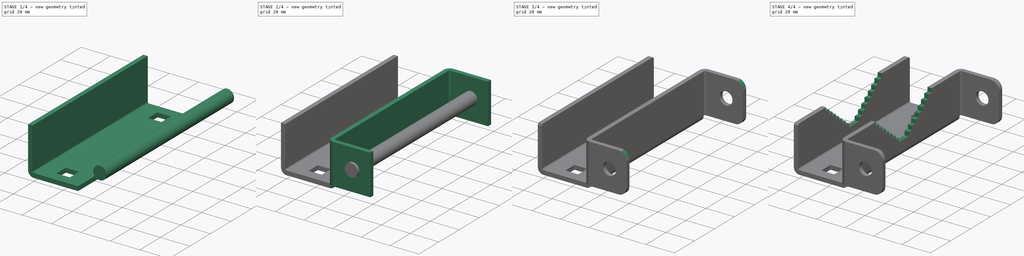
[diagram: build sequence overview — one tinted view per stage of 4, left to right]
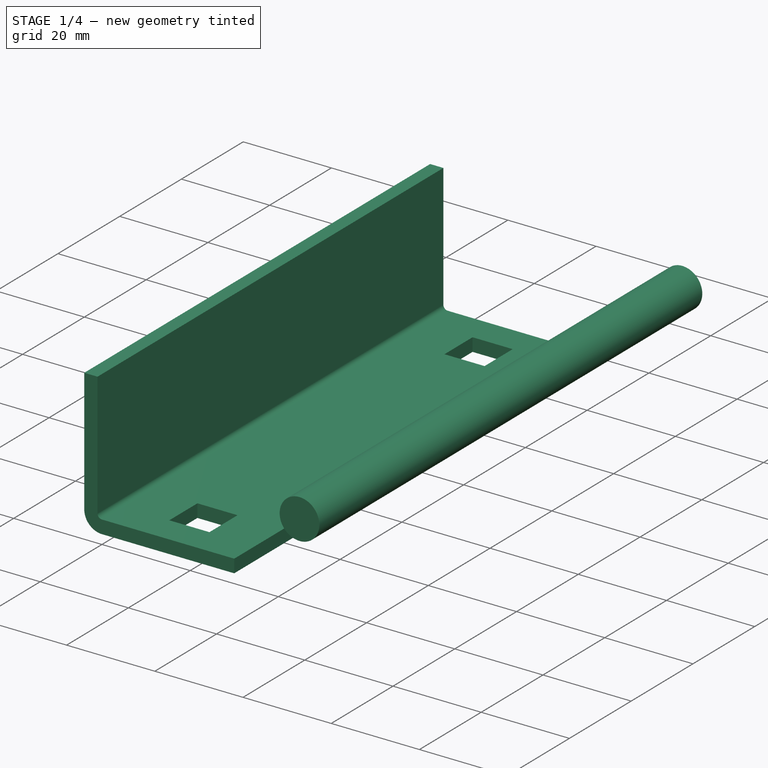
[diagram: stage 1 of 4 — iso view after this stage's code; geometry added in this stage tinted green]
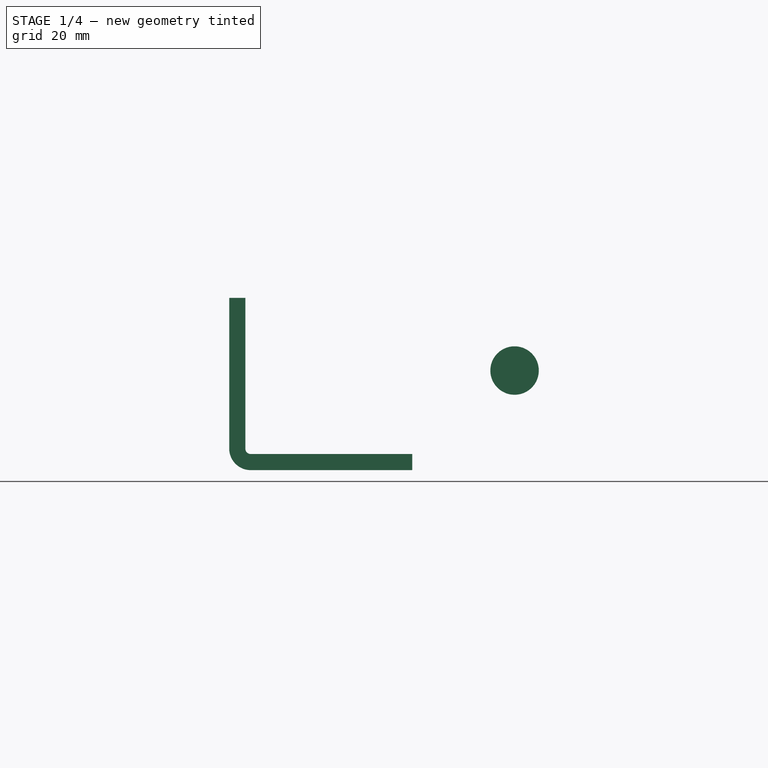
[diagram: stage 1 of 4 — front view after this stage's code; geometry added in this stage tinted green]
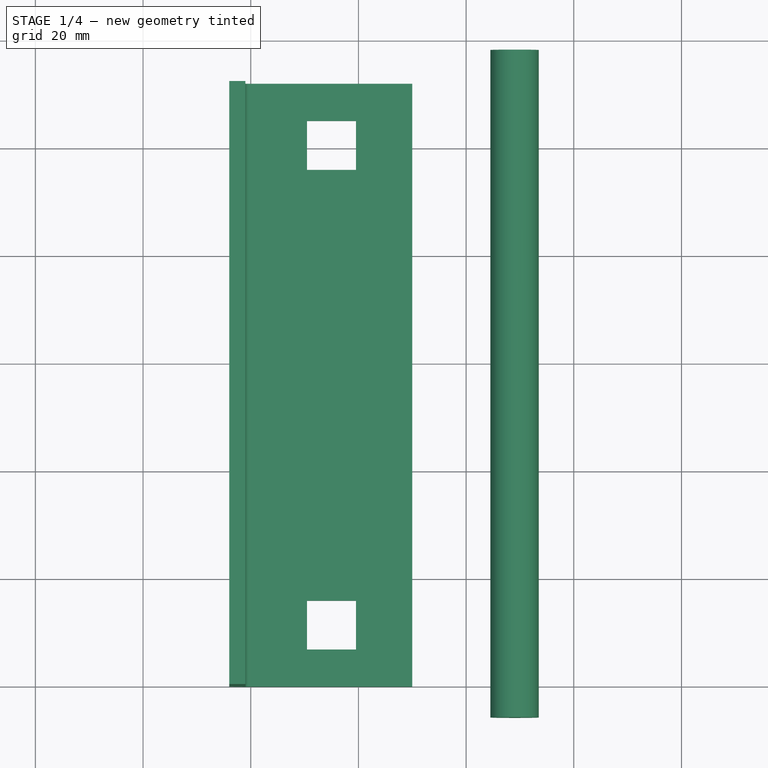
[diagram: stage 1 of 4 — top view after this stage's code; geometry added in this stage tinted green]
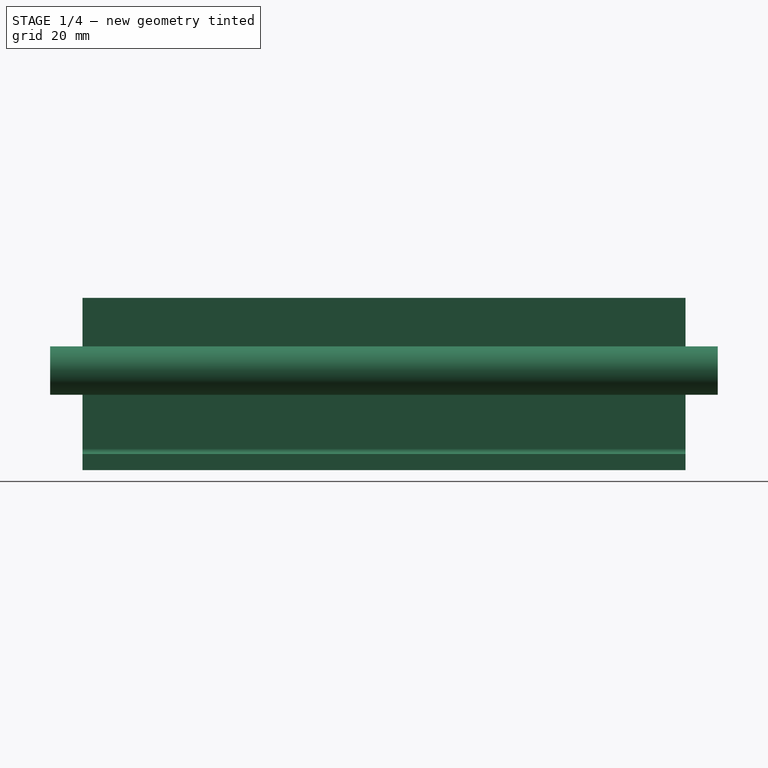
[diagram: stage 1 of 4 — right view after this stage's code; geometry added in this stage tinted green]
FCSTD DOCUMENT  (FreeCAD 2021.1015R24301 +3962 (Git))
Label: bracket_sheetmetal
License: All rights reserved
LicenseURL: http://en.wikipedia.org/wiki/All_rights_reserved
objects: TechDraw::DrawViewDimension×16, Part::FeaturePython×4, Sketcher::SketchObject×3, Part::Cut×2, App::Part×2, Spreadsheet::Sheet×1, Part::Extrusion×1, Part::Cylinder×1, Part::Fillet×1, Part::SubShapeBinder×1, PartDesign::Pad×1, PartDesign::Boolean×1, PartDesign::SubShapeBinder×1, PartDesign::Body×1, Part::Feature×1, TechDraw::DrawSVGTemplate×1, TechDraw::DrawProjGroupItem×1, TechDraw::DrawProjGroup×1, TechDraw::DrawPage×1
note: 21 computed .brp shape members not serialized (recipe doc carries the construction recipe); baked Part::Feature solids carry a one-line shape summary decoded from their .brp

FEATURE [Spreadsheet::Sheet] Spreadsheet  label="vars"
  PythonMode = false
  cells = A1='width; B1(width)=112; A2='height; B2(height)=31; A3='thickness; B3(thickness)=3; A4='bottom_len; B4(bottom_len)=30; A5='tab_len; B5(tab_len)=26; A6='sq_hole_spacing; B6(sq_spacing)=80; A7='sq_width; B7(sq_width)=9.1; A8='tab_hole_radius; B8(tab_hole_radius)=4.5
FEATURE [Sketcher::SketchObject] Sketch
  FullyConstrained = true
  expr: Constraints[10] = <<vars>>.bottom_len
  expr: Constraints[36] = Spreadsheet.sq_spacing
  expr: Constraints[42] = <<vars>>.sq_width
  expr: Constraints[9] = <<vars>>.width
  sketch-geometry (20):
    g0: LineSegment StartX=0 StartY=0 StartZ=0 EndX=30 EndY=0 EndZ=0
    g1: LineSegment StartX=30 StartY=0 StartZ=0 EndX=30 EndY=112 EndZ=0
    g2: LineSegment StartX=30 StartY=112 StartZ=0 EndX=0 EndY=112 EndZ=0
    g3: LineSegment StartX=0 StartY=112 StartZ=0 EndX=0 EndY=0 EndZ=0
    g4: LineSegment StartX=10.45 StartY=16 StartZ=0 EndX=19.55 EndY=16 EndZ=0
    g5: LineSegment StartX=19.55 StartY=16 StartZ=0 EndX=19.55 EndY=6.9 EndZ=0
    g6: LineSegment StartX=19.55 StartY=6.9 StartZ=0 EndX=10.45 EndY=6.9 EndZ=0
    g7: LineSegment StartX=10.45 StartY=6.9 StartZ=0 EndX=10.45 EndY=16 EndZ=0
    g8: LineSegment StartX=10.45 StartY=105.1 StartZ=0 EndX=19.55 EndY=105.1 EndZ=0
    g9: LineSegment StartX=19.55 StartY=105.1 StartZ=0 EndX=19.55 EndY=96 EndZ=0
    g10: LineSegment StartX=19.55 StartY=96 StartZ=0 EndX=10.45 EndY=96 EndZ=0
    g11: LineSegment StartX=10.45 StartY=96 StartZ=0 EndX=10.45 EndY=105.1 EndZ=0
    g12: GeomPoint [constr] X=15 Y=100.55 Z=0
    g13: GeomPoint [constr] X=15 Y=11.45 Z=0
    g14: GeomPoint [constr] X=15 Y=56 Z=0
    g15: LineSegment [constr] StartX=15 StartY=96 StartZ=0 EndX=15 EndY=16 EndZ=0
    g16: GeomPoint [constr] X=15 Y=56 Z=0
    g17: GeomPoint [constr] X=15 Y=16 Z=0
    g18: GeomPoint [constr] X=15 Y=56 Z=0
    g19: GeomPoint [constr] X=15 Y=96 Z=0
  constraints (43):
    c: Coincident(g0,g1)
    c: Coincident(g1,g2)
    c: Coincident(g2,g3)
    c: Coincident(g3,g0)
    c: Horizontal(g0)
    c: Horizontal(g2)
    c: Vertical(g1)
    c: Vertical(g3)
    c: Coincident(g0,g-1)
    c: DistanceY(g1,g1) = 112
    c: DistanceX(g0,g0) = 30
    c: Coincident(g4,g5)
    c: Coincident(g5,g6)
    c: Coincident(g6,g7)
    c: Coincident(g7,g4)
    c: Horizontal(g4)
    c: Horizontal(g6)
    c: Vertical(g5)
    c: Vertical(g7)
    c: Coincident(g8,g9)
    c: Coincident(g9,g10)
    c: Coincident(g10,g11)
    c: Coincident(g11,g8)
    c: Horizontal(g8)
    c: Horizontal(g10)
    c: Vertical(g9)
    c: Vertical(g11)
    c: Equal(g10,g11)
    c: Equal(g6,g7)
    c: Equal(g7,g11)
    c: Symmetric(g4,g5,g13)
    c: Symmetric(g9,g8,g12)
    c: Symmetric(g2,g0,g14)
    c: Vertical(g15)
    c: Symmetric(g15,g15,g16)
    c: Coincident(g16,g14)
    c: DistanceY(g15,g15) = 80
    c: Symmetric(g4,g4,g17)
    c: Symmetric(g15,g15,g18)
    c: Coincident(g17,g15)
    c: Symmetric(g9,g10,g19)
    c: Coincident(g15,g19)
    c: DistanceY(g7,g7) = 9.1
FEATURE [Part::Extrusion] Extrude
  Base = -> Sketch
  Dir = (0,0,1)
  DirMode = 2
  FaceMakerClass = Part::FaceMakerBullseye
  InnerTaperAngle = 0
  InnerTaperAngleRev = 0
  LengthFwd = 3
  LengthRev = 0
  Linearize = true
  Solid = true
  Symmetric = false
  expr: LengthFwd = <<vars>>.thickness
FEATURE [Part::FeaturePython] Bend  # WARN: FeaturePython — macro-defined, semantics opaque (R4)
  AutoMiter = true
  BendType = 0
  LengthList = [28]
  ReliefFactor = 0.7
  UseReliefFactor = false
  angle = 90
  baseObject = -> Extrude [Face4]
  bendAList = [90]
  extend1 = 0
  extend2 = 0
  gap1 = 0
  gap2 = 0
  invert = false
  kfactor = 0.5
  length = 28
  maxExtendDist = 5
  minGap = 0.1
  minReliefGap = 1
  miterangle1 = 0
  miterangle2 = 0
  offset = 0
  radius = 1
  reliefType = 0
  reliefd = 1
  reliefw = 0.8
  sketchflip = false
  sketchinvert = false
  unfold = false
  expr: length = <<vars>>.height - <<vars>>.thickness
FEATURE [Part::Cylinder] Cylinder
  Angle = 360
  AttacherType = Attacher::AttachEngine3D
  Height = 124
  Placement = pos=(49,-6,18.5) rot=(1,0,0;4.71239rad)
  Radius = 4.5
  expr: Placement.Base.x = <<vars>>.bottom_len + 2 * <<vars>>.thickness + <<vars>>.tab_len / 2
  expr: Placement.Base.y = -<<vars>>.thickness * 2
  expr: Placement.Base.z = <<vars>>.height / 2 + <<vars>>.thickness
  expr: Height = <<vars>>.width + <<vars>>.thickness * 4
  expr: Radius = <<vars>>.tab_hole_radius
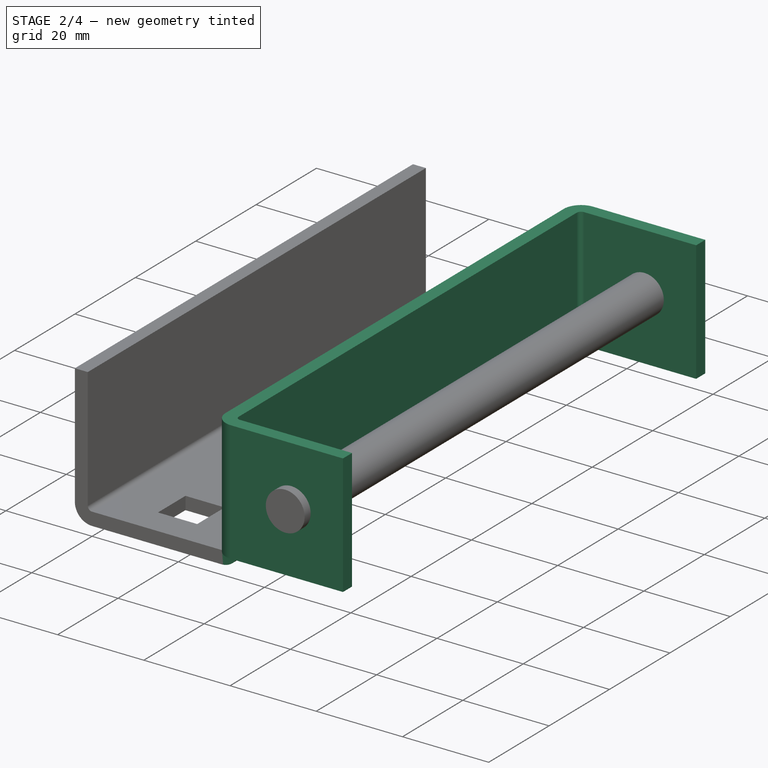
[diagram: stage 2 of 4 — iso view after this stage's code; geometry added in this stage tinted green]
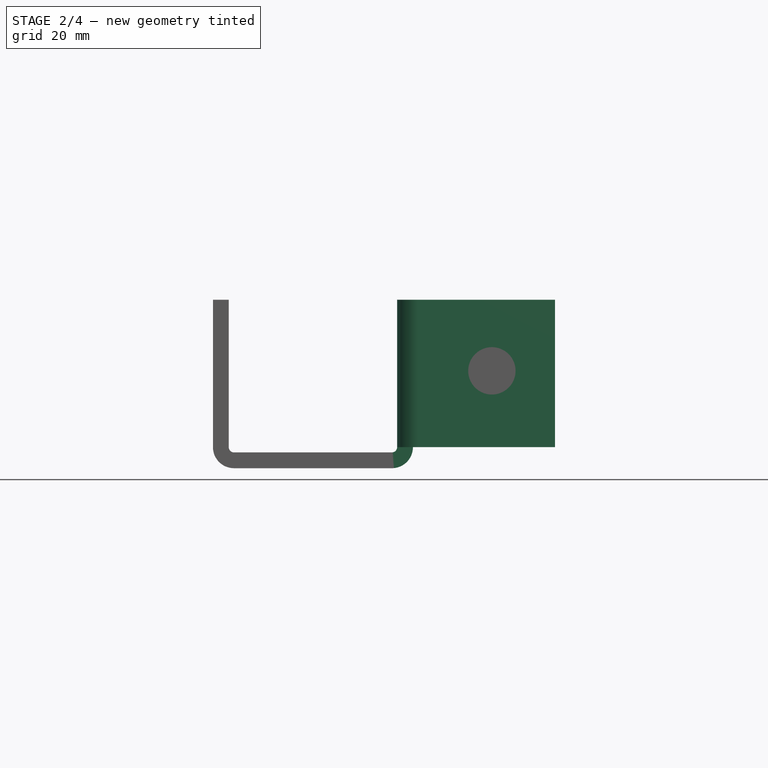
[diagram: stage 2 of 4 — front view after this stage's code; geometry added in this stage tinted green]
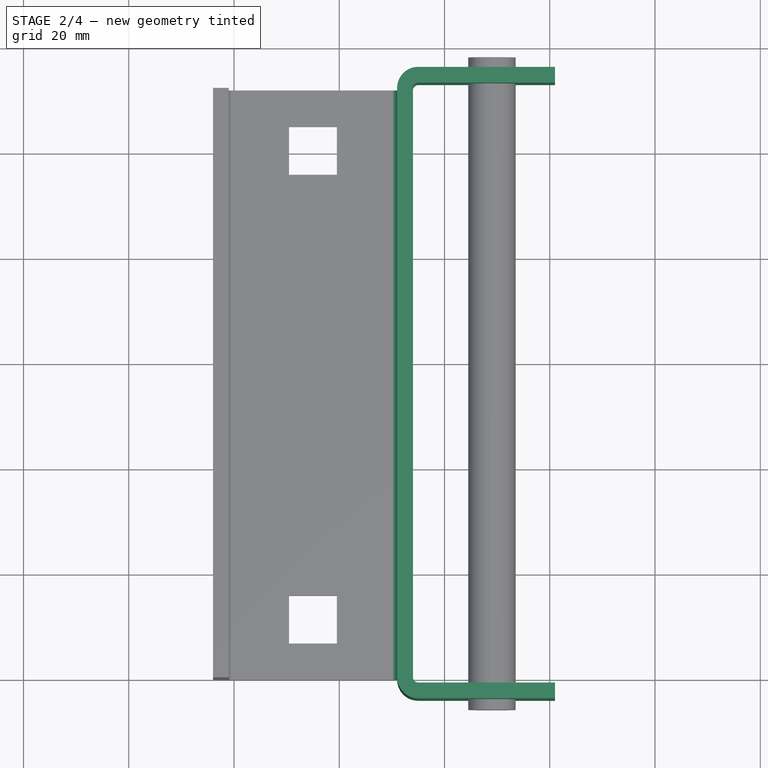
[diagram: stage 2 of 4 — top view after this stage's code; geometry added in this stage tinted green]
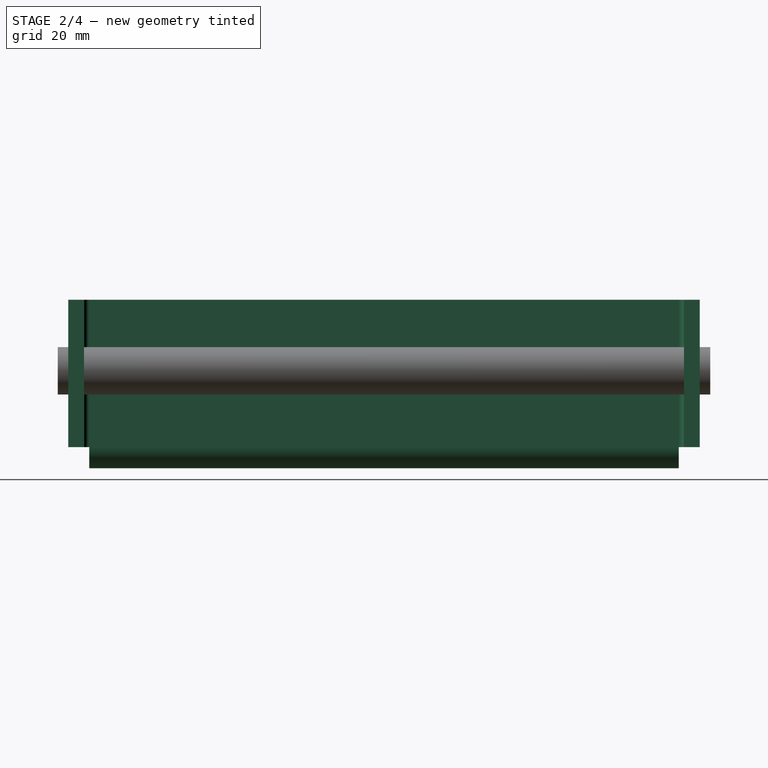
[diagram: stage 2 of 4 — right view after this stage's code; geometry added in this stage tinted green]
FEATURE [Part::FeaturePython] Bend001  # WARN: FeaturePython — macro-defined, semantics opaque (R4)
  AutoMiter = true
  BendType = 0
  LengthList = [28]
  ReliefFactor = 0.7
  UseReliefFactor = false
  angle = 90
  baseObject = -> Bend [Face3]
  bendAList = [90]
  extend1 = 0
  extend2 = 0
  gap1 = 0
  gap2 = 0
  invert = false
  kfactor = 0.5
  length = 28
  maxExtendDist = 5
  minGap = 0.1
  minReliefGap = 1
  miterangle1 = 0
  miterangle2 = 0
  offset = 0
  radius = 1
  reliefType = 0
  reliefd = 1
  reliefw = 0.8
  sketchflip = false
  sketchinvert = false
  unfold = false
  expr: length = <<vars>>.height - <<vars>>.thickness
FEATURE [Part::FeaturePython] Bend002  # WARN: FeaturePython — macro-defined, semantics opaque (R4)
  AutoMiter = true
  BendType = 0
  LengthList = [26]
  ReliefFactor = 0.7
  UseReliefFactor = false
  angle = 90
  baseObject = -> Bend001 [Face11]
  bendAList = [90]
  extend1 = 0
  extend2 = 0
  gap1 = 0
  gap2 = 0
  invert = true
  kfactor = 0.5
  length = 26
  maxExtendDist = 5
  minGap = 0.1
  minReliefGap = 1
  miterangle1 = 0
  miterangle2 = 0
  offset = 0
  radius = 1
  reliefType = 0
  reliefd = 1
  reliefw = 0.8
  sketchflip = false
  sketchinvert = false
  unfold = false
  expr: length = <<vars>>.tab_len
FEATURE [Part::FeaturePython] Bend003  # WARN: FeaturePython — macro-defined, semantics opaque (R4)
  AutoMiter = false
  BendType = 0
  LengthList = [26]
  ReliefFactor = 0.7
  UseReliefFactor = false
  angle = 90
  baseObject = -> Bend002 [Face32]
  bendAList = [90]
  extend1 = 0
  extend2 = 0
  gap1 = 0
  gap2 = 0
  invert = true
  kfactor = 0.5
  length = 26
  maxExtendDist = 5
  minGap = 0.1
  minReliefGap = 1
  miterangle1 = 0
  miterangle2 = 0
  offset = 0
  radius = 1
  reliefType = 0
  reliefd = 1
  reliefw = 0.8
  sketchflip = false
  sketchinvert = false
  unfold = false
  expr: length = <<vars>>.tab_len
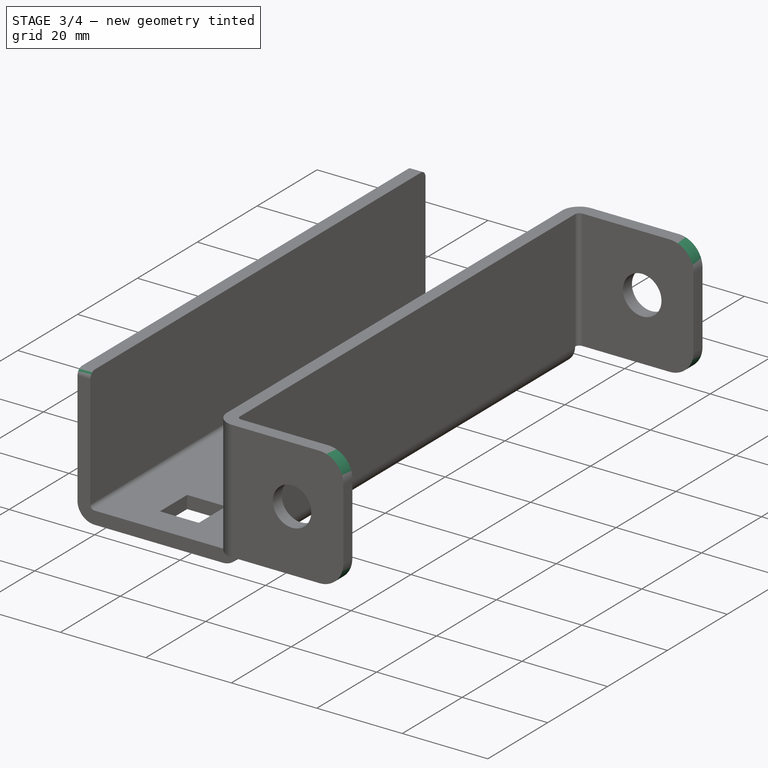
[diagram: stage 3 of 4 — iso view after this stage's code; geometry added in this stage tinted green]
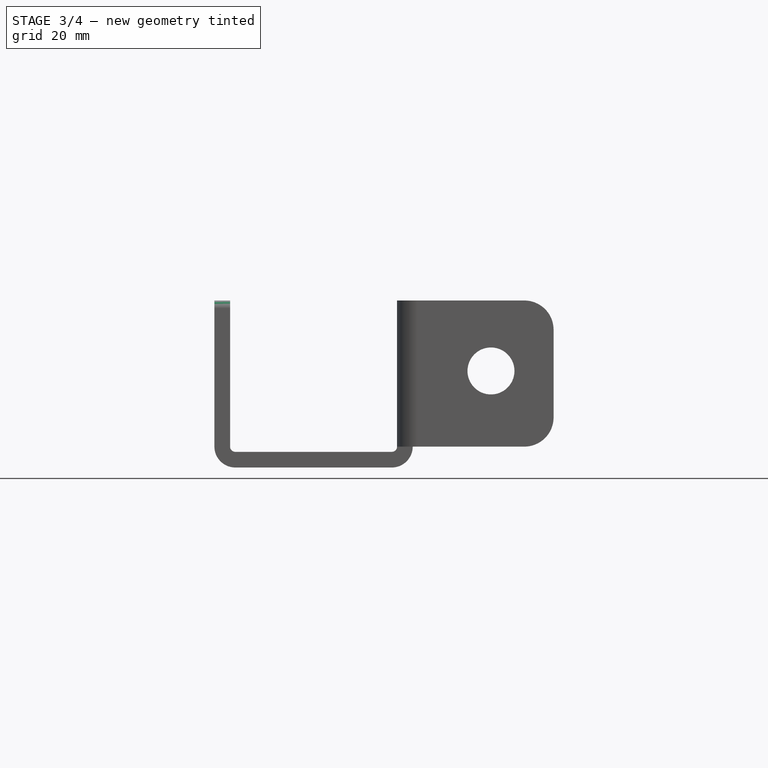
[diagram: stage 3 of 4 — front view after this stage's code; geometry added in this stage tinted green]
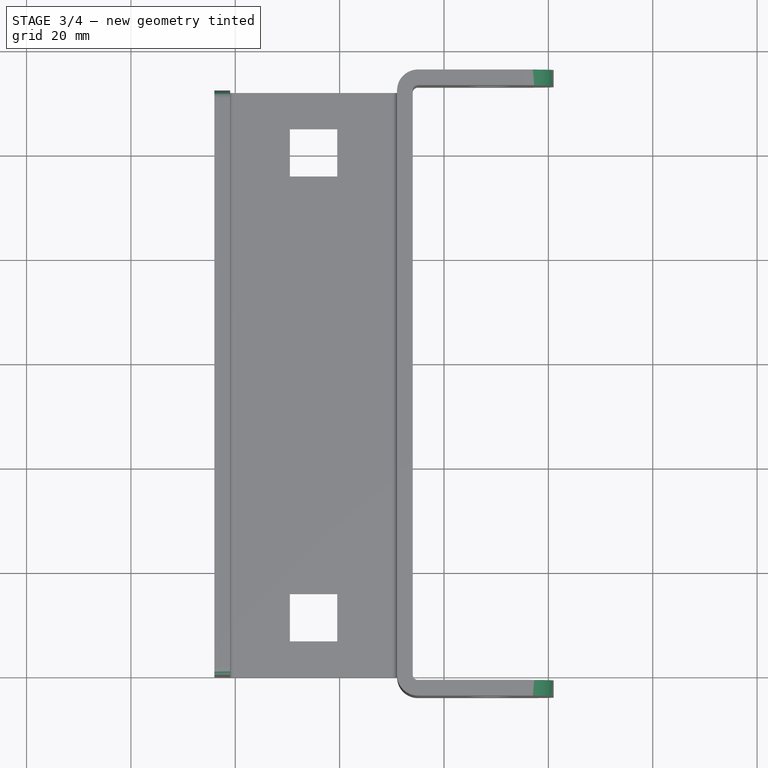
[diagram: stage 3 of 4 — top view after this stage's code; geometry added in this stage tinted green]
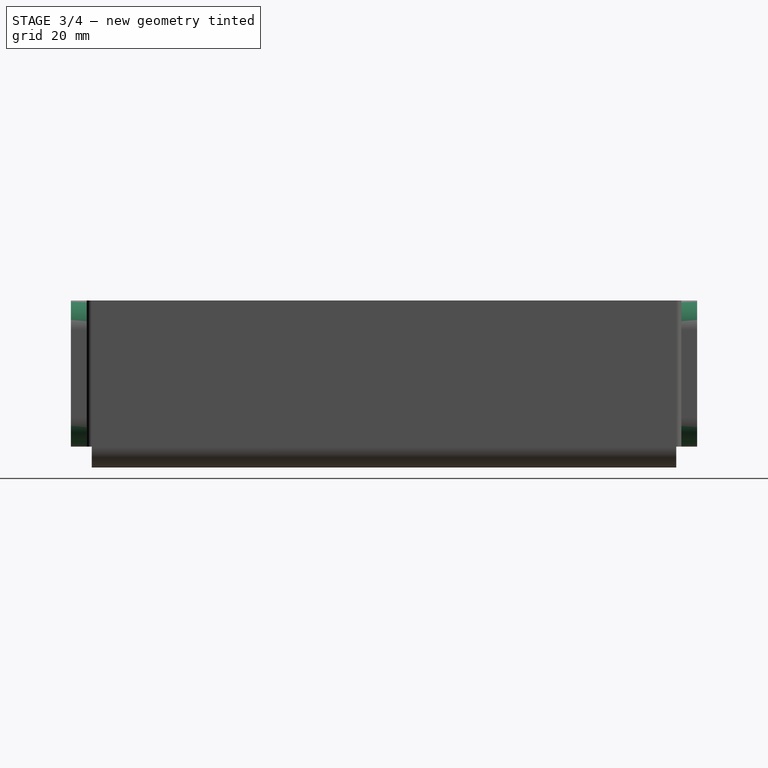
[diagram: stage 3 of 4 — right view after this stage's code; geometry added in this stage tinted green]
FEATURE [Part::Cut] Cut
  Base = -> Bend003
  Tool = -> Cylinder
FEATURE [Part::Fillet] Fillet
  Base = -> Cut
  EdgeLinks = -> Cut [Edge37,Edge62,Edge74,Edge93,Edge94,Edge105]
  Edges = 6 edges: [Edge37 r=1.5,Edge62 r=1.5,Edge74 r=5.6,Edge93 r=5.6,Edge94 r=5.6,Edge105 r=5.6]
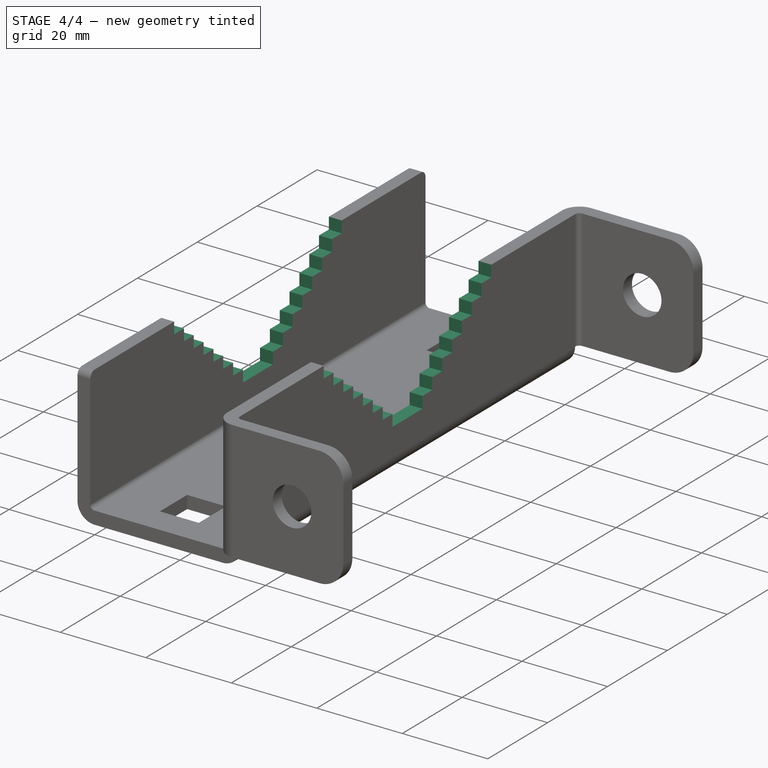
[diagram: stage 4 of 4 — iso view after this stage's code; geometry added in this stage tinted green]
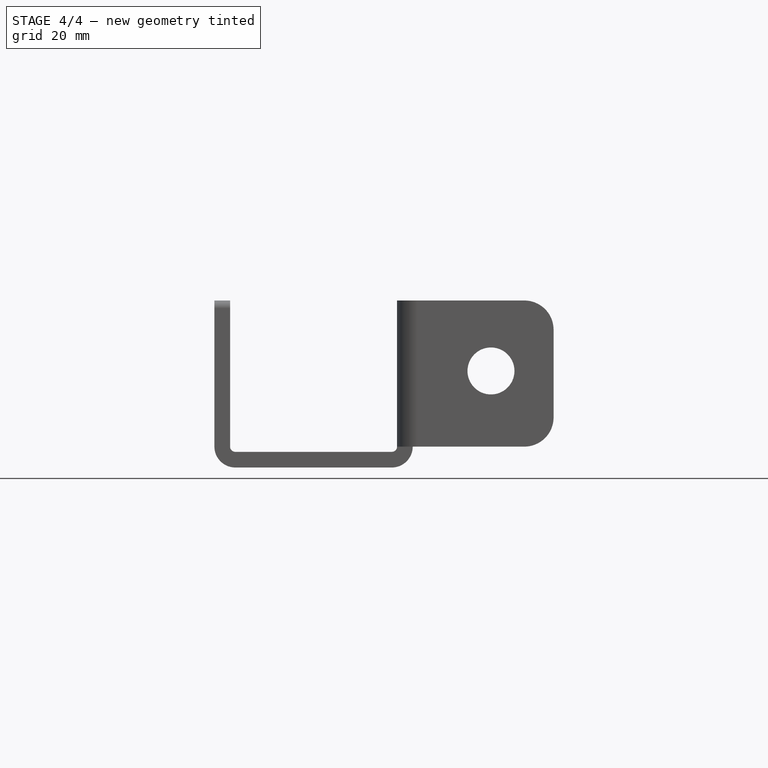
[diagram: stage 4 of 4 — front view after this stage's code; geometry added in this stage tinted green]
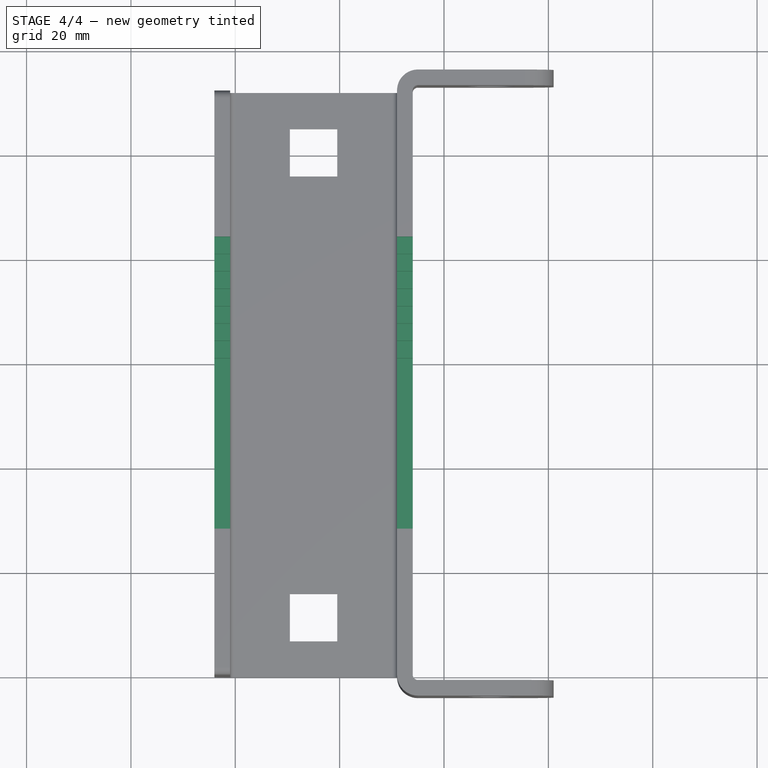
[diagram: stage 4 of 4 — top view after this stage's code; geometry added in this stage tinted green]
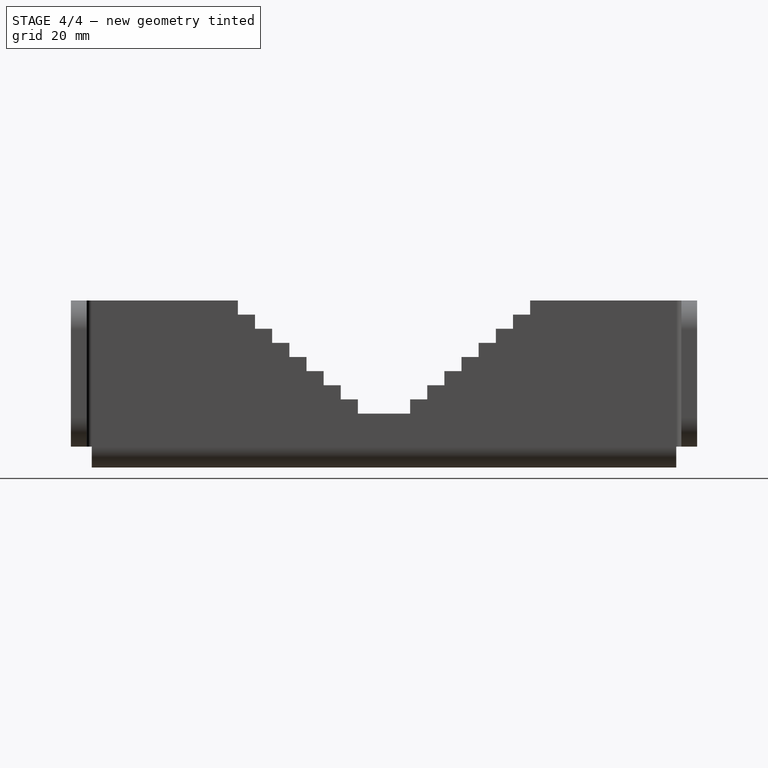
[diagram: stage 4 of 4 — right view after this stage's code; geometry added in this stage tinted green]
FEATURE [App::Part] Part
  ExportMode = 1
  Group = -> [Sketch,Extrude,Bend002,Bend001,Bend,Bend003,Cylinder,Cut,Fillet]
  Origin = -> Origin
  _ExportChildren = -> [Fillet]
  _GroupVersion = 1
FEATURE [Part::SubShapeBinder] Import  label="Import(Fillet)"
  BindCopyOnChange = 0
  BindMode = 0
  ClaimChildren = false
  Context = -> Part001 [Body.Import.]
  FillStyle = 0
  Fuse = false
  MakeFace = false
  PartialLoad = false
  Relative = true
  Support = -> [Part[Fillet.]]
  _Version = 7
FEATURE [Sketcher::SketchObject] Sketch001
  FullyConstrained = true
  MapMode = 5
  Placement = pos=(-4,0,-4e-16) rot=(0.57735,-0.57735,-0.57735;2.0944rad)
  Support = -> [Import]
  expr: Constraints[1] = <<vars>>.width / 2
  expr: Constraints[2] = <<vars>>.height / 3
  expr: Constraints[3] = <<vars>>.width * 3 / 4
  expr: Constraints[4] = <<vars>>.height + 1
  expr: Constraints[5] = <<vars>>.width * 1 / 4
  expr: Constraints[6] = <<vars>>.height + 1
  expr: Constraints[9] = 10
  sketch-geometry (36):
    g0: GeomPoint [constr] X=0 Y=0 Z=0
    g1: GeomPoint [constr] X=-56 Y=10.3333 Z=0
    g2: GeomPoint [constr] X=-84 Y=32 Z=0
    g3: GeomPoint [constr] X=-28 Y=32 Z=0
    g4: LineSegment StartX=-61 StartY=10.3333 StartZ=0 EndX=-51 EndY=10.3333 EndZ=0
    g5: LineSegment StartX=-51 StartY=10.3333 StartZ=0 EndX=-51 EndY=13.0417 EndZ=0
    g6: LineSegment StartX=-51 StartY=13.0417 StartZ=0 EndX=-47.7143 EndY=13.0417 EndZ=0
    g7: LineSegment StartX=-47.7143 StartY=13.0417 StartZ=0 EndX=-47.7143 EndY=15.75 EndZ=0
    g8: LineSegment StartX=-47.7143 StartY=15.75 StartZ=0 EndX=-44.4286 EndY=15.75 EndZ=0
    g9: LineSegment StartX=-44.4286 StartY=15.75 StartZ=0 EndX=-44.4286 EndY=18.4583 EndZ=0
    g10: LineSegment StartX=-44.4286 StartY=18.4583 StartZ=0 EndX=-41.1429 EndY=18.4583 EndZ=0
    g11: LineSegment StartX=-41.1429 StartY=18.4583 StartZ=0 EndX=-41.1429 EndY=21.1667 EndZ=0
    g12: LineSegment StartX=-41.1429 StartY=21.1667 StartZ=0 EndX=-37.8571 EndY=21.1667 EndZ=0
    g13: LineSegment StartX=-37.8571 StartY=21.1667 StartZ=0 EndX=-37.8571 EndY=23.875 EndZ=0
    g14: LineSegment StartX=-37.8571 StartY=23.875 StartZ=0 EndX=-34.5714 EndY=23.875 EndZ=0
    g15: LineSegment StartX=-34.5714 StartY=23.875 StartZ=0 EndX=-34.5714 EndY=26.5833 EndZ=0
    g16: LineSegment StartX=-34.5714 StartY=26.5833 StartZ=0 EndX=-31.2857 EndY=26.5833 EndZ=0
    g17: LineSegment StartX=-31.2857 StartY=26.5833 StartZ=0 EndX=-31.2857 EndY=29.2917 EndZ=0
    g18: LineSegment StartX=-61 StartY=10.3333 StartZ=0 EndX=-61 EndY=13.0417 EndZ=0
    g19: LineSegment StartX=-61 StartY=13.0417 StartZ=0 EndX=-64.2857 EndY=13.0417 EndZ=0
    g20: LineSegment StartX=-64.2857 StartY=13.0417 StartZ=0 EndX=-64.2857 EndY=15.75 EndZ=0
    g21: LineSegment StartX=-64.2857 StartY=15.75 StartZ=0 EndX=-67.5714 EndY=15.75 EndZ=0
    g22: LineSegment StartX=-67.5714 StartY=15.75 StartZ=0 EndX=-67.5714 EndY=18.4583 EndZ=0
    g23: LineSegment StartX=-67.5714 StartY=18.4583 StartZ=0 EndX=-70.8571 EndY=18.4583 EndZ=0
    g24: LineSegment StartX=-70.8571 StartY=18.4583 StartZ=0 EndX=-70.8571 EndY=21.1667 EndZ=0
    g25: LineSegment StartX=-70.8571 StartY=21.1667 StartZ=0 EndX=-74.1429 EndY=21.1667 EndZ=0
    g26: LineSegment StartX=-74.1429 StartY=21.1667 StartZ=0 EndX=-74.1429 EndY=23.875 EndZ=0
    g27: LineSegment StartX=-74.1429 StartY=23.875 StartZ=0 EndX=-77.4286 EndY=23.875 EndZ=0
    g28: LineSegment StartX=-77.4286 StartY=23.875 StartZ=0 EndX=-77.4286 EndY=26.5833 EndZ=0
    g29: LineSegment StartX=-77.4286 StartY=26.5833 StartZ=0 EndX=-80.7143 EndY=26.5833 EndZ=0
    g30: LineSegment StartX=-80.7143 StartY=26.5833 StartZ=0 EndX=-80.7143 EndY=29.2917 EndZ=0
    g31: LineSegment StartX=-84 StartY=32 StartZ=0 EndX=-84 EndY=29.2917 EndZ=0
    g32: LineSegment StartX=-84 StartY=29.2917 StartZ=0 EndX=-80.7143 EndY=29.2917 EndZ=0
    g33: LineSegment StartX=-31.2857 StartY=29.2917 StartZ=0 EndX=-28 EndY=29.2917 EndZ=0
    g34: LineSegment StartX=-28 StartY=29.2917 StartZ=0 EndX=-28 EndY=32 EndZ=0
    g35: LineSegment StartX=-84 StartY=32 StartZ=0 EndX=-28 EndY=32 EndZ=0
  constraints (100):
    c: Coincident(g0,g-1)
    c: DistanceX(g1,g0) = 56
    c: DistanceY(g0,g1) = 10.3333
    c: DistanceX(g2,g0) = 84
    c: DistanceY(g0,g2) = 32
    c: DistanceX(g3,g0) = 28
    c: DistanceY(g0,g3) = 32
    c: Horizontal(g4)
    c: Symmetric(g4,g4,g1)
    c: DistanceX(g4,g4) = 10
    c: Coincident(g5,g4)
    c: Vertical(g5)
    c: Coincident(g6,g5)
    c: Horizontal(g6)
    c: Coincident(g7,g6)
    c: Vertical(g7)
    c: Coincident(g8,g7)
    c: Horizontal(g8)
    c: Coincident(g9,g8)
    c: Vertical(g9)
    c: Coincident(g10,g9)
    c: Horizontal(g10)
    c: Coincident(g11,g10)
    c: Vertical(g11)
    c: Coincident(g12,g11)
    c: Horizontal(g12)
    c: Coincident(g13,g12)
    c: Vertical(g13)
    c: Coincident(g14,g13)
    c: Horizontal(g14)
    c: Coincident(g15,g14)
    c: Vertical(g15)
    c: Coincident(g16,g15)
    c: Horizontal(g16)
    c: Coincident(g17,g16)
    c: Vertical(g17)
    c: Coincident(g18,g4)
    c: Vertical(g18)
    c: Coincident(g19,g18)
    c: Horizontal(g19)
    c: Coincident(g20,g19)
    c: Vertical(g20)
    c: Coincident(g21,g20)
    c: Horizontal(g21)
    c: Coincident(g22,g21)
    c: Vertical(g22)
    c: Coincident(g23,g22)
    c: Horizontal(g23)
    c: Coincident(g24,g23)
    c: Vertical(g24)
    c: Coincident(g25,g24)
    c: Horizontal(g25)
    c: Coincident(g26,g25)
    c: Vertical(g26)
    c: Coincident(g27,g26)
    c: Horizontal(g27)
    c: Coincident(g28,g27)
    c: Vertical(g28)
    c: Coincident(g29,g28)
    c: Horizontal(g29)
    c: Coincident(g30,g29)
    c: Vertical(g30)
    c: Equal(g19,g21)
    c: Coincident(g31,g2)
    c: Vertical(g31)
    c: Coincident(g32,g31)
    c: Coincident(g32,g30)
    c: Horizontal(g32)
    c: Equal(g32,g29)
    c: Equal(g29,g27)
    c: Equal(g27,g25)
    c: Equal(g25,g23)
    c: Equal(g23,g21)
    c: Equal(g31,g30)
    c: Equal(g30,g28)
    c: Equal(g28,g26)
    c: Equal(g26,g24)
    c: Equal(g24,g22)
    c: Equal(g22,g20)
    c: Equal(g20,g18)
    c: Coincident(g33,g17)
    c: Horizontal(g33)
    c: Coincident(g34,g33)
    c: Coincident(g34,g3)
    c: Vertical(g34)
    c: Coincident(g35,g31)
    c: Coincident(g35,g34)
    c: Equal(g5,g7)
    c: Equal(g7,g9)
    c: Equal(g9,g11)
    c: Equal(g11,g13)
    c: Equal(g13,g15)
    c: Equal(g15,g17)
    c: Equal(g17,g34)
    c: Equal(g6,g8)
    c: Equal(g8,g10)
    c: Equal(g10,g12)
    c: Equal(g12,g14)
    c: Equal(g14,g16)
    c: Equal(g16,g33)
FEATURE [PartDesign::Pad] Pad
  ClaimChildren = false
  Direction = (1,1,1)
  Fit = 0
  FitJoin = 0
  InnerFit = 0
  InnerFitJoin = 0
  InnerTaperAngle = 0
  InnerTaperAngleRev = 0
  Length = 38
  Length2 = 100
  Linearize = true
  NewSolid = false
  Profile = -> Sketch001
  Reversed = true
  Suppress = false
  Type = 0
  _ProfileBasedVersion = 1
  expr: Length = <<vars>>.bottom_len + 2 * 1 + <<vars>>.thickness * 2
FEATURE [PartDesign::Boolean] Boolean
  BaseFeature = -> Pad
  ExportMode = 0
  NewSolid = false
  Suppress = false
  Type = 0
  _GroupVersion = 1
FEATURE [PartDesign::SubShapeBinder] Reference
  BindCopyOnChange = 0
  BindMode = 0
  ClaimChildren = false
  Context = -> Part001 [Body.Reference.]
  FillStyle = 0
  Fuse = false
  MakeFace = true
  PartialLoad = false
  Relative = true
  Support = -> [Part]
  _Version = 7
FEATURE [PartDesign::Body] Body
  AutoGroupSolids = false
  ExportMode = 0
  Group = -> [Sketch001,Import,Pad,Boolean,Reference]
  Origin = -> Origin002
  Tip = -> Boolean
  _ExportChildren = -> [Import,Pad,Boolean,Reference]
  _GroupVersion = 1
FEATURE [App::Part] Part001  label="grippers"
  ExportMode = 1
  Group = -> [Body]
  Origin = -> Origin001
  _ExportChildren = -> [Body]
  _GroupVersion = 1
FEATURE [Part::Cut] Cut001
  Base = -> Part
  Tool = -> Part001
FEATURE [Part::Feature] Unfold
  shape: bbox 91.03 x 169 x 3 mm, 90 faces (baked)
FEATURE [Sketcher::SketchObject] Unfold_Sketch
  FullyConstrained = false
  sketch-geometry (92):
    g0: ArcOfCircle CenterX=-38.1133 CenterY=134.913 CenterZ=0 NormalX=0 NormalY=0 NormalZ=1 AngleXU=-3.14159 Radius=5.6 StartAngle=3.14159 EndAngle=4.71239
    g1: LineSegment StartX=-54.9133 StartY=140.513 StartZ=0 EndX=-38.1133 EndY=140.513 EndZ=0
    g2: ArcOfCircle CenterX=-54.9133 CenterY=134.913 CenterZ=0 NormalX=0 NormalY=0 NormalZ=1 AngleXU=-3.14159 Radius=5.6 StartAngle=4.71239 EndAngle=6.28319
    g3: LineSegment StartX=-60.5133 StartY=84 StartZ=0 EndX=-60.5133 EndY=134.913 EndZ=0
    g4: LineSegment StartX=-60.5133 StartY=84 StartZ=0 EndX=-57.8049 EndY=84 EndZ=0
    g5: LineSegment StartX=-57.8049 StartY=84 StartZ=0 EndX=-57.8049 EndY=80.7143 EndZ=0
    g6: LineSegment StartX=-55.0966 StartY=80.7143 StartZ=0 EndX=-57.8049 EndY=80.7143 EndZ=0
    g7: LineSegment StartX=-55.0966 StartY=77.4286 StartZ=0 EndX=-55.0966 EndY=80.7143 EndZ=0
    g8: LineSegment StartX=-52.3883 StartY=77.4286 StartZ=0 EndX=-55.0966 EndY=77.4286 EndZ=0
    g9: LineSegment StartX=-52.3883 StartY=74.1429 StartZ=0 EndX=-52.3883 EndY=77.4286 EndZ=0
    g10: LineSegment StartX=-49.6799 StartY=74.1429 StartZ=0 EndX=-52.3883 EndY=74.1429 EndZ=0
    g11: LineSegment StartX=-49.6799 StartY=70.8571 StartZ=0 EndX=-49.6799 EndY=74.1429 EndZ=0
    g12: LineSegment StartX=-46.9716 StartY=70.8571 StartZ=0 EndX=-49.6799 EndY=70.8571 EndZ=0
    g13: LineSegment StartX=-46.9716 StartY=67.5714 StartZ=0 EndX=-46.9716 EndY=70.8571 EndZ=0
    g14: LineSegment StartX=-44.2633 StartY=67.5714 StartZ=0 EndX=-46.9716 EndY=67.5714 EndZ=0
    g15: LineSegment StartX=-44.2633 StartY=64.2857 StartZ=0 EndX=-44.2633 EndY=67.5714 EndZ=0
    g16: LineSegment StartX=-41.5549 StartY=64.2857 StartZ=0 EndX=-44.2633 EndY=64.2857 EndZ=0
    g17: LineSegment StartX=-41.5549 StartY=61 StartZ=0 EndX=-41.5549 EndY=64.2857 EndZ=0
    g18: LineSegment StartX=-38.8466 StartY=61 StartZ=0 EndX=-41.5549 EndY=61 EndZ=0
    g19: LineSegment StartX=-38.8466 StartY=61 StartZ=0 EndX=-38.8466 EndY=51 EndZ=0
    g20: LineSegment StartX=-38.8466 StartY=51 StartZ=0 EndX=-41.5549 EndY=51 EndZ=0
    g21: LineSegment StartX=-41.5549 StartY=51 StartZ=0 EndX=-41.5549 EndY=47.7143 EndZ=0
    g22: LineSegment StartX=-41.5549 StartY=47.7143 StartZ=0 EndX=-44.2633 EndY=47.7143 EndZ=0
    g23: LineSegment StartX=-44.2633 StartY=47.7143 StartZ=0 EndX=-44.2633 EndY=44.4286 EndZ=0
    g24: LineSegment StartX=-44.2633 StartY=44.4286 StartZ=0 EndX=-46.9716 EndY=44.4286 EndZ=0
    g25: LineSegment StartX=-46.9716 StartY=44.4286 StartZ=0 EndX=-46.9716 EndY=41.1429 EndZ=0
    g26: LineSegment StartX=-46.9716 StartY=41.1429 StartZ=0 EndX=-49.6799 EndY=41.1429 EndZ=0
    g27: LineSegment StartX=-49.6799 StartY=41.1429 StartZ=0 EndX=-49.6799 EndY=37.8571 EndZ=0
    g28: LineSegment StartX=-49.6799 StartY=37.8571 StartZ=0 EndX=-52.3883 EndY=37.8571 EndZ=0
    g29: LineSegment StartX=-52.3883 StartY=37.8571 StartZ=0 EndX=-52.3883 EndY=34.5714 EndZ=0
    g30: LineSegment StartX=-52.3883 StartY=34.5714 StartZ=0 EndX=-55.0966 EndY=34.5714 EndZ=0
    g31: LineSegment StartX=-55.0966 StartY=34.5714 StartZ=0 EndX=-55.0966 EndY=31.2857 EndZ=0
    g32: LineSegment StartX=-55.0966 StartY=31.2857 StartZ=0 EndX=-57.8049 EndY=31.2857 EndZ=0
    g33: LineSegment StartX=-57.8049 StartY=31.2857 StartZ=0 EndX=-57.8049 EndY=28 EndZ=0
    g34: LineSegment StartX=-57.8049 StartY=28 StartZ=0 EndX=-60.5133 EndY=28 EndZ=0
    g35: LineSegment StartX=-60.5133 StartY=-22.9133 StartZ=0 EndX=-60.5133 EndY=28 EndZ=0
    g36: ArcOfCircle CenterX=-54.9133 CenterY=-22.9133 CenterZ=0 NormalX=0 NormalY=0 NormalZ=1 AngleXU=-3e-16 Radius=5.6 StartAngle=3.14159 EndAngle=4.71239
    g37: LineSegment StartX=-38.1133 StartY=-28.5133 StartZ=0 EndX=-54.9133 EndY=-28.5133 EndZ=0
    g38: ArcOfCircle CenterX=-38.1133 CenterY=-22.9133 CenterZ=0 NormalX=0 NormalY=0 NormalZ=1 AngleXU=-3e-16 Radius=5.6 StartAngle=4.71239 EndAngle=6.28319
    g39: LineSegment StartX=-32.5133 StartY=0 StartZ=0 EndX=-32.5133 EndY=-22.9133 EndZ=0
    g40: LineSegment StartX=-32.5133 StartY=0 StartZ=0 EndX=29.0133 EndY=0 EndZ=0
    g41: ArcOfCircle CenterX=29.0133 CenterY=1.5 CenterZ=0 NormalX=0 NormalY=0 NormalZ=1 AngleXU=0 Radius=1.5 StartAngle=4.71239 EndAngle=6.28319
    g42: LineSegment StartX=30.5133 StartY=28 StartZ=0 EndX=30.5133 EndY=1.5 EndZ=0
    g43: LineSegment StartX=27.8049 StartY=28 StartZ=0 EndX=30.5133 EndY=28 EndZ=0
    g44: LineSegment StartX=27.8049 StartY=31.2857 StartZ=0 EndX=27.8049 EndY=28 EndZ=0
    g45: LineSegment StartX=25.0966 StartY=31.2857 StartZ=0 EndX=27.8049 EndY=31.2857 EndZ=0
    g46: LineSegment StartX=25.0966 StartY=34.5714 StartZ=0 EndX=25.0966 EndY=31.2857 EndZ=0
    g47: LineSegment StartX=22.3883 StartY=34.5714 StartZ=0 EndX=25.0966 EndY=34.5714 EndZ=0
    g48: LineSegment StartX=22.3883 StartY=37.8571 StartZ=0 EndX=22.3883 EndY=34.5714 EndZ=0
    g49: LineSegment StartX=19.6799 StartY=37.8571 StartZ=0 EndX=22.3883 EndY=37.8571 EndZ=0
    g50: LineSegment StartX=19.6799 StartY=41.1429 StartZ=0 EndX=19.6799 EndY=37.8571 EndZ=0
    g51: LineSegment StartX=16.9716 StartY=41.1429 StartZ=0 EndX=19.6799 EndY=41.1429 EndZ=0
    g52: LineSegment StartX=16.9716 StartY=44.4286 StartZ=0 EndX=16.9716 EndY=41.1429 EndZ=0
    g53: LineSegment StartX=14.2633 StartY=44.4286 StartZ=0 EndX=16.9716 EndY=44.4286 EndZ=0
    g54: LineSegment StartX=14.2633 StartY=47.7143 StartZ=0 EndX=14.2633 EndY=44.4286 EndZ=0
    g55: LineSegment StartX=11.5549 StartY=47.7143 StartZ=0 EndX=14.2633 EndY=47.7143 EndZ=0
    g56: LineSegment StartX=11.5549 StartY=51 StartZ=0 EndX=11.5549 EndY=47.7143 EndZ=0
    g57: LineSegment StartX=8.84661 StartY=51 StartZ=0 EndX=11.5549 EndY=51 EndZ=0
    g58: LineSegment StartX=8.84661 StartY=61 StartZ=0 EndX=8.84661 EndY=51 EndZ=0
    g59: LineSegment StartX=8.84661 StartY=61 StartZ=0 EndX=11.5549 EndY=61 EndZ=0
    g60: LineSegment StartX=11.5549 StartY=61 StartZ=0 EndX=11.5549 EndY=64.2857 EndZ=0
    g61: LineSegment StartX=11.5549 StartY=64.2857 StartZ=0 EndX=14.2633 EndY=64.2857 EndZ=0
    g62: LineSegment StartX=14.2633 StartY=64.2857 StartZ=0 EndX=14.2633 EndY=67.5714 EndZ=0
    g63: LineSegment StartX=14.2633 StartY=67.5714 StartZ=0 EndX=16.9716 EndY=67.5714 EndZ=0
    g64: LineSegment StartX=16.9716 StartY=67.5714 StartZ=0 EndX=16.9716 EndY=70.8571 EndZ=0
    g65: LineSegment StartX=16.9716 StartY=70.8571 StartZ=0 EndX=19.6799 EndY=70.8571 EndZ=0
    g66: LineSegment StartX=19.6799 StartY=70.8571 StartZ=0 EndX=19.6799 EndY=74.1429 EndZ=0
    g67: LineSegment StartX=19.6799 StartY=74.1429 StartZ=0 EndX=22.3883 EndY=74.1429 EndZ=0
    g68: LineSegment StartX=22.3883 StartY=74.1429 StartZ=0 EndX=22.3883 EndY=77.4286 EndZ=0
    g69: LineSegment StartX=22.3883 StartY=77.4286 StartZ=0 EndX=25.0966 EndY=77.4286 EndZ=0
    g70: LineSegment StartX=25.0966 StartY=77.4286 StartZ=0 EndX=25.0966 EndY=80.7143 EndZ=0
    g71: LineSegment StartX=25.0966 StartY=80.7143 StartZ=0 EndX=27.8049 EndY=80.7143 EndZ=0
    g72: LineSegment StartX=27.8049 StartY=84 StartZ=0 EndX=27.8049 EndY=80.7143 EndZ=0
    g73: LineSegment StartX=30.5133 StartY=84 StartZ=0 EndX=27.8049 EndY=84 EndZ=0
    g74: LineSegment StartX=30.5133 StartY=110.5 StartZ=0 EndX=30.5133 EndY=84 EndZ=0
    g75: ArcOfCircle CenterX=29.0133 CenterY=110.5 CenterZ=0 NormalX=0 NormalY=0 NormalZ=1 AngleXU=0 Radius=1.5 StartAngle=0 EndAngle=1.5708
    g76: LineSegment StartX=-32.5133 StartY=112 StartZ=0 EndX=29.0133 EndY=112 EndZ=0
    g77: LineSegment StartX=-32.5133 StartY=112 StartZ=0 EndX=-32.5133 EndY=134.913 EndZ=0
    g78: LineSegment StartX=-10.45 StartY=16 StartZ=0 EndX=-19.55 EndY=16 EndZ=0
    g79: LineSegment StartX=-10.45 StartY=6.9 StartZ=0 EndX=-10.45 EndY=16 EndZ=0
    g80: LineSegment StartX=-19.55 StartY=6.9 StartZ=0 EndX=-10.45 EndY=6.9 EndZ=0
    g81: LineSegment StartX=-19.55 StartY=16 StartZ=0 EndX=-19.55 EndY=6.9 EndZ=0
    g82: LineSegment StartX=-10.45 StartY=105.1 StartZ=0 EndX=-19.55 EndY=105.1 EndZ=0
    g83: LineSegment StartX=-10.45 StartY=96 StartZ=0 EndX=-10.45 EndY=105.1 EndZ=0
    g84: LineSegment StartX=-19.55 StartY=96 StartZ=0 EndX=-10.45 EndY=96 EndZ=0
    g85: LineSegment StartX=-19.55 StartY=105.1 StartZ=0 EndX=-19.55 EndY=96 EndZ=0
    g86: Circle CenterX=-47.0133 CenterY=128.513 CenterZ=0 NormalX=0 NormalY=0 NormalZ=-1 AngleXU=1.5708 Radius=4.5
    g87: Circle CenterX=-47.0133 CenterY=-16.5133 CenterZ=0 NormalX=0 NormalY=0 NormalZ=1 AngleXU=-1.5708 Radius=4.5
    g88: LineSegment StartX=-32.5133 StartY=113.257 StartZ=0 EndX=-60.5133 EndY=113.257 EndZ=0
    g89: LineSegment StartX=-60.5133 StartY=-1.25664 StartZ=0 EndX=-32.5133 EndY=-1.25664 EndZ=0
    g90: LineSegment StartX=-31.2566 StartY=112 StartZ=0 EndX=-31.2566 EndY=0 EndZ=0
    g91: LineSegment StartX=1.25664 StartY=0 StartZ=0 EndX=1.25664 EndY=112 EndZ=0
FEATURE [TechDraw::DrawSVGTemplate] Template
  EditableTexts = AUTHOR_NAME=Robert Foss; DN=DN; DRAWING_TITLE=Antenna Bracket; FC-DATE=01/12/2022; FC-REV=REV A; FC-SC=SCALE; FC-SH=X / Y; FC-SI=A4; FreeCAD_DRAWING=FreeCAD DRAWING; PN=PN; SI-1=Swiveling bracket for Ubiquiti Titanium Antennas
  Height = 297
  Orientation = 0
  Width = 210
FEATURE [TechDraw::DrawProjGroupItem] ProjItem  label="Front"
  CoarseView = false
  Direction = (0,0,1)
  Focus = 100
  HardHidden = false
  IsoCount = 0
  IsoHidden = false
  IsoVisible = false
  LockPosition = true
  Perspective = false
  Rotation = 0
  RotationVector = (1,0,0)
  ScaleType = 2
  SeamHidden = false
  SeamVisible = true
  SmoothHidden = false
  SmoothVisible = true
  Source = -> [Unfold_Sketch]
  Type = 0
  X = 0
  XDirection = (1,0,0)
  Y = 0
FEATURE [TechDraw::DrawProjGroup] ProjGroup
  Anchor = -> ProjItem
  AutoDistribute = true
  LockPosition = false
  ProjectionType = 0
  Rotation = 0
  ScaleType = 0
  Source = -> [Unfold_Sketch]
  Views = -> [ProjItem]
  X = 116.282
  Y = 179.402
  spacingX = 15
  spacingY = 15
FEATURE [TechDraw::DrawViewDimension] Dimension
  Arbitrary = false
  ArbitraryTolerances = false
  EqualTolerance = true
  FormatSpec = %.2f
  FormatSpecOverTolerance = %+.2f
  FormatSpecUnderTolerance = %+.2f
  Inverted = false
  LockPosition = false
  MeasureType = 1
  OverTolerance = 0
  References2D = -> [ProjItem]
  Rotation = 0
  ScaleType = 0
  TheoreticalExact = false
  Type = 2
  UnderTolerance = 0
  X = 36.6733
  Y = 0.518248
FEATURE [TechDraw::DrawViewDimension] Dimension001
  Arbitrary = false
  ArbitraryTolerances = false
  EqualTolerance = true
  FormatSpec = %.2f
  FormatSpecOverTolerance = %+.2f
  FormatSpecUnderTolerance = %+.2f
  Inverted = false
  LockPosition = false
  MeasureType = 1
  OverTolerance = 0
  References2D = -> [ProjItem]
  Rotation = 0
  ScaleType = 0
  TheoreticalExact = false
  Type = 2
  UnderTolerance = 0
  X = -47.8032
  Y = 8.32716
FEATURE [TechDraw::DrawViewDimension] Dimension002
  Arbitrary = false
  ArbitraryTolerances = false
  EqualTolerance = true
  FormatSpec = %.2f
  FormatSpecOverTolerance = %+.2f
  FormatSpecUnderTolerance = %+.2f
  Inverted = false
  LockPosition = false
  MeasureType = 1
  OverTolerance = 0
  References2D = -> [ProjItem]
  Rotation = 0
  ScaleType = 0
  TheoreticalExact = false
  Type = 1
  UnderTolerance = 0
  X = -28.6865
  Y = 29.793
FEATURE [TechDraw::DrawViewDimension] Dimension003
  Arbitrary = false
  ArbitraryTolerances = false
  EqualTolerance = true
  FormatSpec = %.2f
  FormatSpecOverTolerance = %+.2f
  FormatSpecUnderTolerance = %+.2f
  Inverted = false
  LockPosition = false
  MeasureType = 1
  OverTolerance = 0
  References2D = -> [ProjItem]
  Rotation = 0
  ScaleType = 0
  TheoreticalExact = false
  Type = 2
  UnderTolerance = 0
  X = 61.8962
  Y = -0.141928
FEATURE [TechDraw::DrawViewDimension] Dimension004
  Arbitrary = false
  ArbitraryTolerances = false
  EqualTolerance = true
  FormatSpec = %.2f
  FormatSpecOverTolerance = %+.2f
  FormatSpecUnderTolerance = %+.2f
  Inverted = false
  LockPosition = false
  MeasureType = 1
  OverTolerance = 0
  References2D = -> [ProjItem]
  Rotation = 0
  ScaleType = 0
  TheoreticalExact = false
  Type = 2
  UnderTolerance = 0
  X = -73.8689
  Y = 1.11942
FEATURE [TechDraw::DrawViewDimension] Dimension005
  Arbitrary = false
  ArbitraryTolerances = false
  EqualTolerance = true
  FormatSpec = %.2f
  FormatSpecOverTolerance = %+.2f
  FormatSpecUnderTolerance = %+.2f
  Inverted = false
  LockPosition = false
  MeasureType = 1
  OverTolerance = 0
  References2D = -> [ProjItem]
  Rotation = 0
  ScaleType = 0
  TheoreticalExact = false
  Type = 2
  UnderTolerance = 0
  X = -58.9985
  Y = -69.0855
FEATURE [TechDraw::DrawViewDimension] Dimension006
  Arbitrary = false
  ArbitraryTolerances = false
  EqualTolerance = true
  FormatSpec = %.2f
  FormatSpecOverTolerance = %+.2f
  FormatSpecUnderTolerance = %+.2f
  Inverted = false
  LockPosition = false
  MeasureType = 1
  OverTolerance = 0
  References2D = -> [ProjItem]
  Rotation = 0
  ScaleType = 0
  TheoreticalExact = false
  Type = 2
  UnderTolerance = 0
  X = -11.3138
  Y = -66.6046
FEATURE [TechDraw::DrawViewDimension] Dimension007
  Arbitrary = false
  ArbitraryTolerances = false
  EqualTolerance = true
  FormatSpec = %.2f
  FormatSpecOverTolerance = %+.2f
  FormatSpecUnderTolerance = %+.2f
  Inverted = false
  LockPosition = false
  MeasureType = 1
  OverTolerance = 0
  References2D = -> [ProjItem]
  Rotation = 0
  ScaleType = 0
  TheoreticalExact = false
  Type = 1
  UnderTolerance = 0
  X = -7.81561
  Y = -81.7634
FEATURE [TechDraw::DrawViewDimension] Dimension008
  Arbitrary = false
  ArbitraryTolerances = false
  EqualTolerance = true
  FormatSpec = %.2f
  FormatSpecOverTolerance = %+.2f
  FormatSpecUnderTolerance = %+.2f
  Inverted = false
  LockPosition = false
  MeasureType = 1
  OverTolerance = 0
  References2D = -> [ProjItem]
  Rotation = 0
  ScaleType = 0
  TheoreticalExact = false
  Type = 1
  UnderTolerance = 0
  X = 31.2641
  Y = 71.2639
FEATURE [TechDraw::DrawViewDimension] Dimension009
  Arbitrary = false
  ArbitraryTolerances = false
  EqualTolerance = true
  FormatSpec = %.2f
  FormatSpecOverTolerance = %+.2f
  FormatSpecUnderTolerance = %+.2f
  Inverted = false
  LockPosition = false
  MeasureType = 1
  OverTolerance = 0
  References2D = -> [ProjItem]
  Rotation = 0
  ScaleType = 0
  TheoreticalExact = false
  Type = 1
  UnderTolerance = 0
  X = 1.49256
  Y = -95.6176
FEATURE [TechDraw::DrawViewDimension] Dimension010
  Arbitrary = false
  ArbitraryTolerances = false
  EqualTolerance = true
  FormatSpec = %.2f
  FormatSpecOverTolerance = %+.2f
  FormatSpecUnderTolerance = %+.2f
  Inverted = false
  LockPosition = false
  MeasureType = 1
  OverTolerance = 0
  References2D = -> [ProjItem]
  Rotation = 0
  ScaleType = 0
  TheoreticalExact = false
  Type = 2
  UnderTolerance = 0
  X = 7.34854
  Y = -43.244
FEATURE [TechDraw::DrawViewDimension] Dimension011
  Arbitrary = false
  ArbitraryTolerances = false
  EqualTolerance = true
  FormatSpec = %.2f
  FormatSpecOverTolerance = %+.2f
  FormatSpecUnderTolerance = %+.2f
  Inverted = false
  LockPosition = false
  MeasureType = 1
  OverTolerance = 0
  References2D = -> [ProjItem]
  Rotation = 0
  ScaleType = 0
  TheoreticalExact = false
  Type = 1
  UnderTolerance = 0
  X = 9.89911
  Y = -23.6608
FEATURE [TechDraw::DrawViewDimension] Dimension012
  Arbitrary = false
  ArbitraryTolerances = false
  EqualTolerance = true
  FormatSpec = R%.2f
  FormatSpecOverTolerance = %+.2f
  FormatSpecUnderTolerance = %+.2f
  Inverted = false
  LockPosition = false
  MeasureType = 1
  OverTolerance = 0
  References2D = -> [ProjItem]
  Rotation = 0
  ScaleType = 0
  TheoreticalExact = false
  Type = 4
  UnderTolerance = 0
  X = -7.56193
  Y = 97.0789
FEATURE [TechDraw::DrawViewDimension] Dimension013
  Arbitrary = false
  ArbitraryTolerances = false
  EqualTolerance = true
  FormatSpec = R%.2f
  FormatSpecOverTolerance = %+.2f
  FormatSpecUnderTolerance = %+.2f
  Inverted = false
  LockPosition = false
  MeasureType = 1
  OverTolerance = 0
  References2D = -> [ProjItem]
  Rotation = 0
  ScaleType = 0
  TheoreticalExact = false
  Type = 4
  UnderTolerance = 0
  X = -60.2911
  Y = 77.8675
FEATURE [TechDraw::DrawViewDimension] Dimension014
  Arbitrary = false
  ArbitraryTolerances = false
  EqualTolerance = true
  FormatSpec = R%.2f
  FormatSpecOverTolerance = %+.2f
  FormatSpecUnderTolerance = %+.2f
  Inverted = false
  LockPosition = false
  MeasureType = 1
  OverTolerance = 0
  References2D = -> [ProjItem]
  Rotation = 0
  ScaleType = 0
  TheoreticalExact = false
  Type = 4
  UnderTolerance = 0
  X = 57.9143
  Y = 71
FEATURE [TechDraw::DrawViewDimension] Dimension015
  Arbitrary = false
  ArbitraryTolerances = false
  EqualTolerance = true
  FormatSpec = %.2f
  FormatSpecOverTolerance = %+.2f
  FormatSpecUnderTolerance = %+.2f
  Inverted = false
  LockPosition = false
  MeasureType = 1
  OverTolerance = 0
  References2D = -> [ProjItem]
  Rotation = 0
  ScaleType = 0
  TheoreticalExact = false
  Type = 2
  UnderTolerance = 0
  X = 9.65941
  Y = 30.5511
FEATURE [TechDraw::DrawPage] Page
  KeepUpdated = true
  NextBalloonIndex = 1
  ProjectionType = 0
  Template = -> Template
  Views = -> [ProjGroup,Dimension,Dimension001,Dimension002,Dimension003,Dimension004,Dimension005,Dimension006,Dimension007,Dimension008,Dimension009,Dimension010,Dimension011,Dimension012,Dimension013,Dimension014,Dimension015]
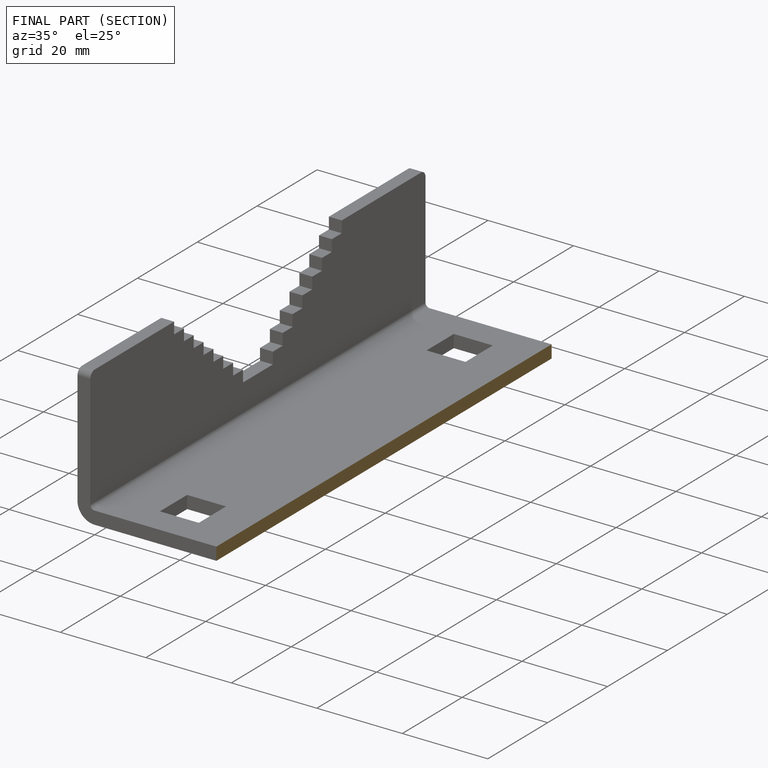
[diagram: finished part — half-section view (interior)]
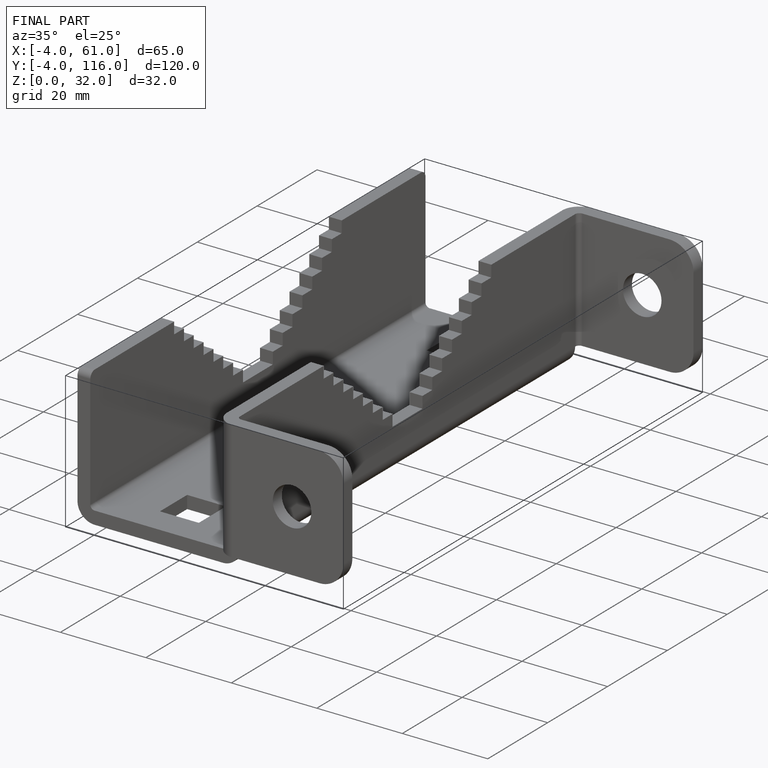
[diagram: finished part — iso view with bounding-box wireframe]
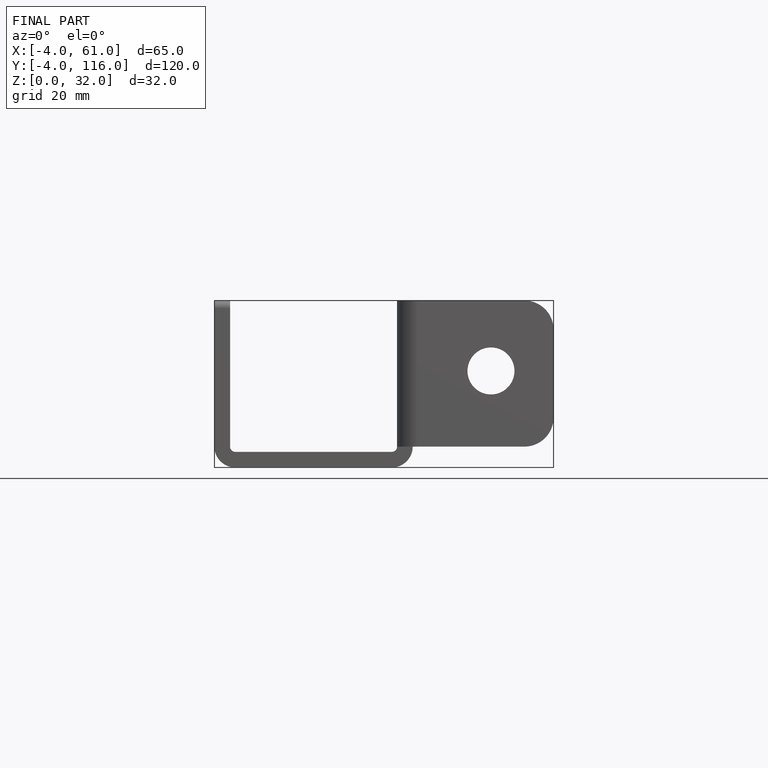
[diagram: finished part — front view with bounding-box wireframe]
